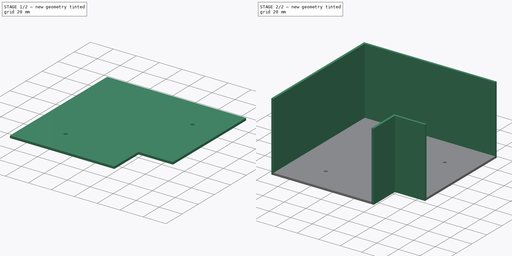
[diagram: build sequence overview — one tinted view per stage of 2, left to right]
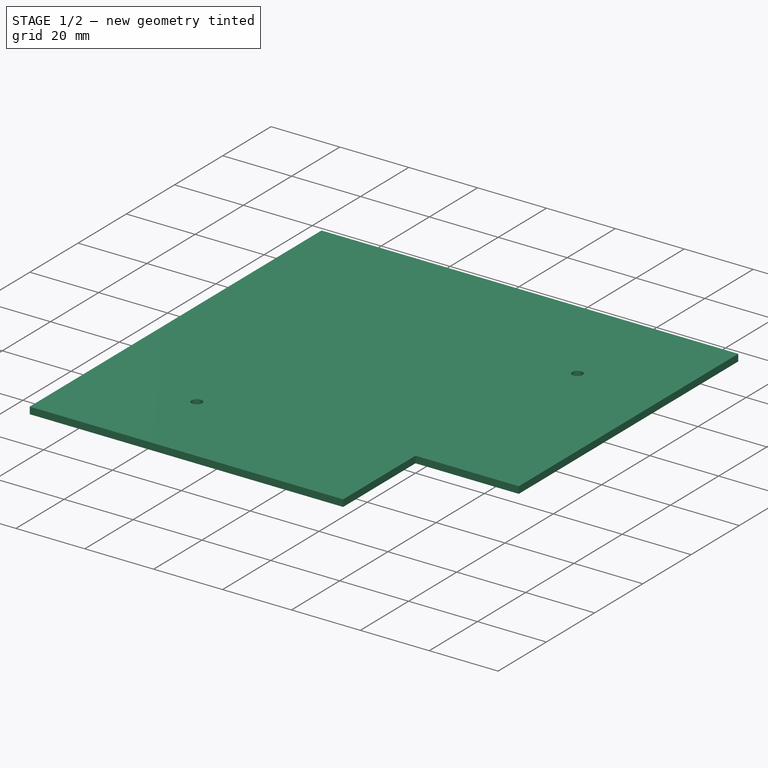
[diagram: stage 1 of 2 — iso view after this stage's code; geometry added in this stage tinted green]
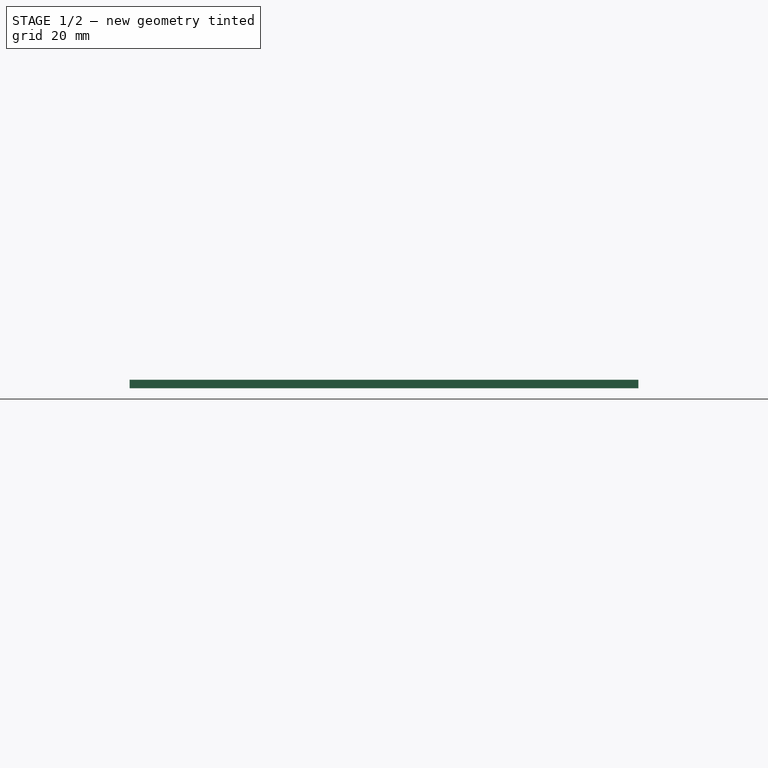
[diagram: stage 1 of 2 — front view after this stage's code; geometry added in this stage tinted green]
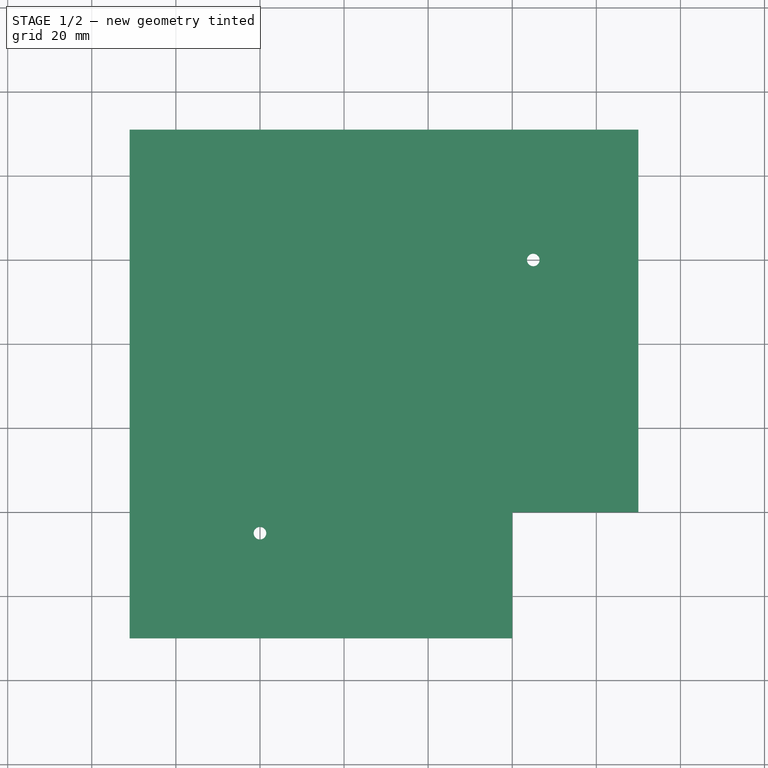
[diagram: stage 1 of 2 — top view after this stage's code; geometry added in this stage tinted green]
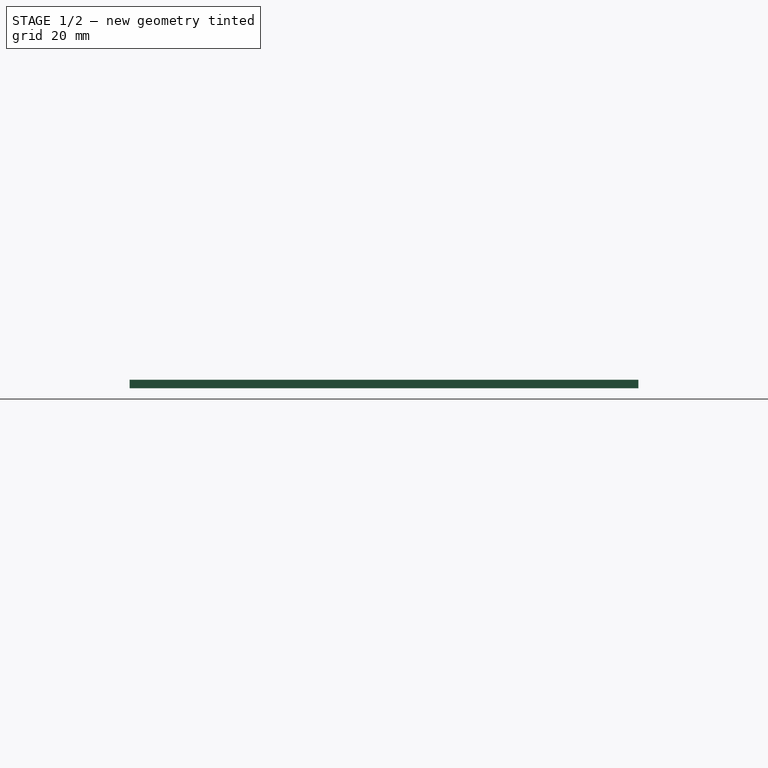
[diagram: stage 1 of 2 — right view after this stage's code; geometry added in this stage tinted green]
FCSTD DOCUMENT  (FreeCAD 0.21R33771 (Git))
Label: Model
License: All rights reserved
LicenseURL: https://en.wikipedia.org/wiki/All_rights_reserved
objects: Sketcher::SketchObject×2, PartDesign::Pad×2, PartDesign::Body×1
note: 7 computed .brp shape members not serialized (recipe doc carries the construction recipe); baked Part::Feature solids carry a one-line shape summary decoded from their .brp

FEATURE [Sketcher::SketchObject] Sketch
  FullyConstrained = true
  MapMode = 5
  sketch-geometry (8):
    g0: LineSegment StartX=0 StartY=0 StartZ=0 EndX=30 EndY=0 EndZ=0
    g1: LineSegment StartX=30 StartY=0 StartZ=0 EndX=30 EndY=91 EndZ=0
    g2: LineSegment StartX=30 StartY=91 StartZ=0 EndX=-91 EndY=91 EndZ=0
    g3: LineSegment StartX=-91 StartY=91 StartZ=0 EndX=-91 EndY=-30 EndZ=0
    g4: LineSegment StartX=-91 StartY=-30 StartZ=0 EndX=0 EndY=-30 EndZ=0
    g5: LineSegment StartX=0 StartY=-30 StartZ=0 EndX=0 EndY=0 EndZ=0
    g6: Circle CenterX=-60 CenterY=-5 CenterZ=0 NormalX=0 NormalY=0 NormalZ=1 AngleXU=0 Radius=1.5
    g7: Circle CenterX=5 CenterY=60 CenterZ=0 NormalX=0 NormalY=0 NormalZ=1 AngleXU=0 Radius=1.5
  constraints (23):
    c: Coincident(g-1,g0)
    c: PointOnObject(g0,g-1)
    c: Coincident(g0,g1)
    c: Vertical(g1)
    c: Coincident(g1,g2)
    c: Horizontal(g2)
    c: Coincident(g2,g3)
    c: Vertical(g3)
    c: Coincident(g3,g4)
    c: PointOnObject(g4,g-2)
    c: Horizontal(g4)
    c: Coincident(g4,g5)
    c: Coincident(g5,g0)
    c: DistanceY(g1,g1) = 91
    c: DistanceX(g0,g0) = 30
    c: Equal(g4,g1)
    c: Equal(g5,g0)
    c: Equal(g6,g7)
    c: Diameter(g7) = 3
    c: DistanceX(g6,g0) = 60
    c: DistanceY(g0,g7) = 60
    c: DistanceY(g4,g6) = 25
    c: DistanceX(g7,g0) = 25
FEATURE [PartDesign::Pad] Pad
  Direction = (0,0,1)
  Length = 2
  Length2 = 10
  Profile = -> Sketch
  ReferenceAxis = -> Sketch [N_Axis]
  Refine = true
  Type = 0
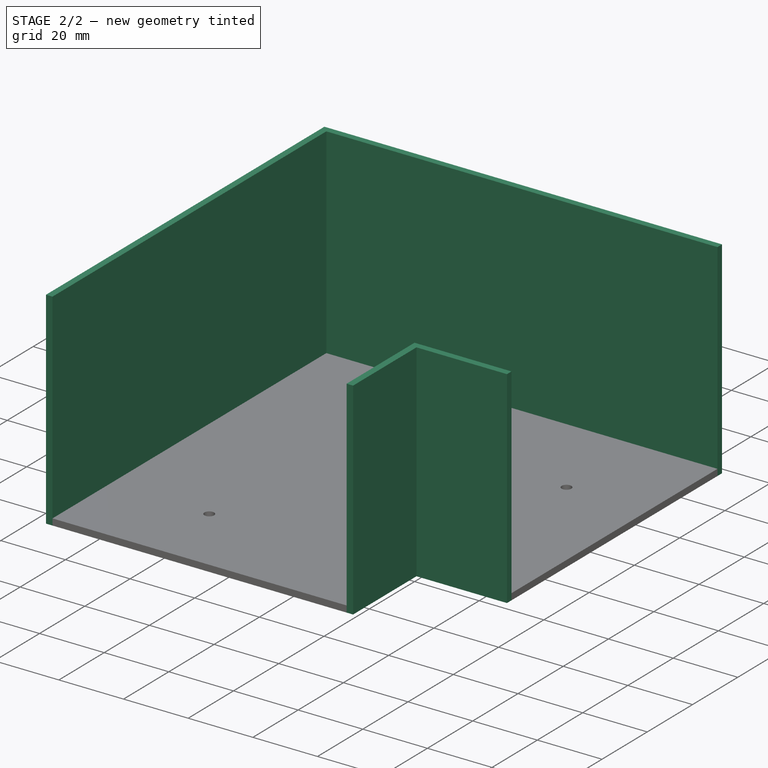
[diagram: stage 2 of 2 — iso view after this stage's code; geometry added in this stage tinted green]
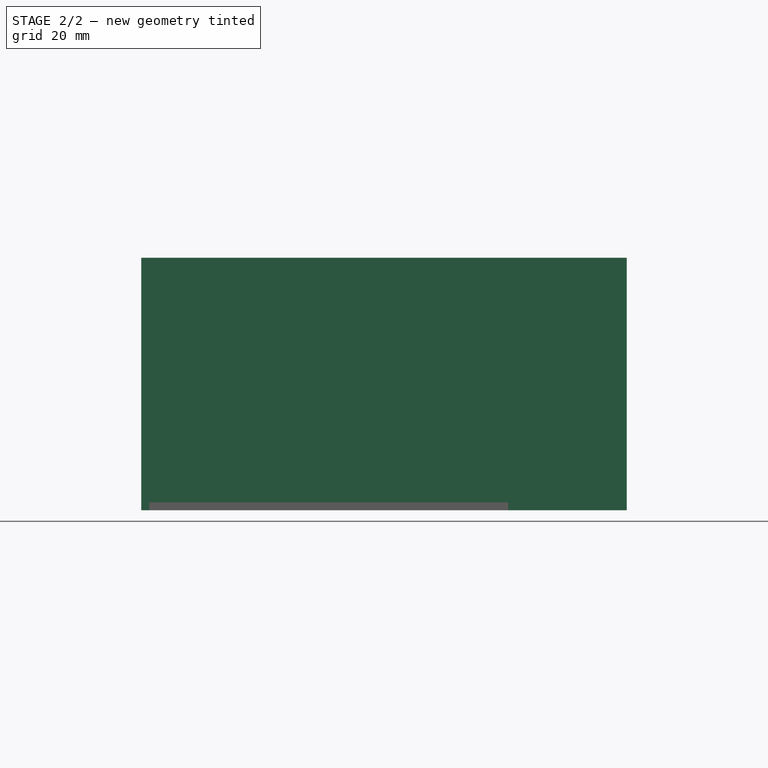
[diagram: stage 2 of 2 — front view after this stage's code; geometry added in this stage tinted green]
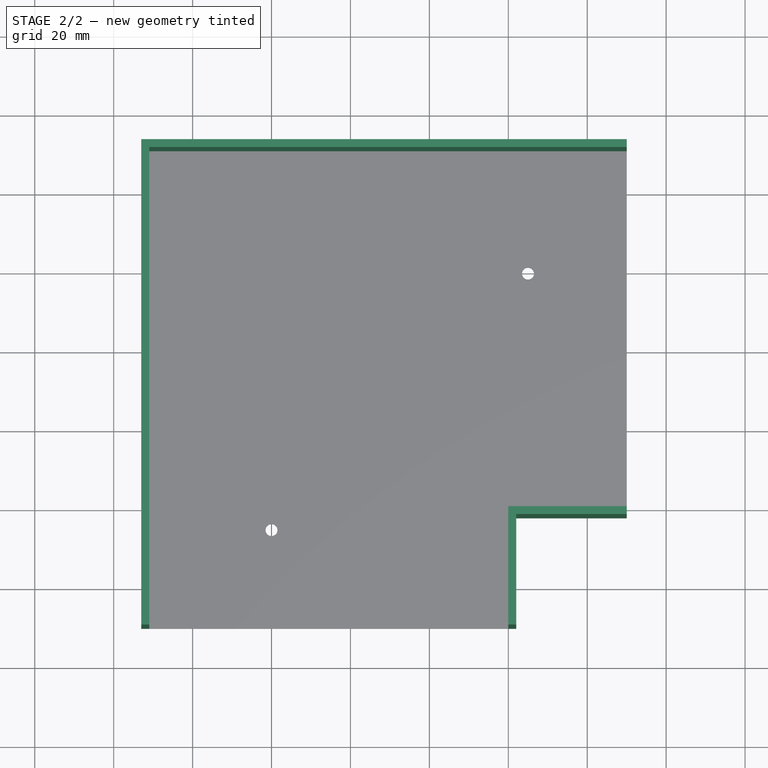
[diagram: stage 2 of 2 — top view after this stage's code; geometry added in this stage tinted green]
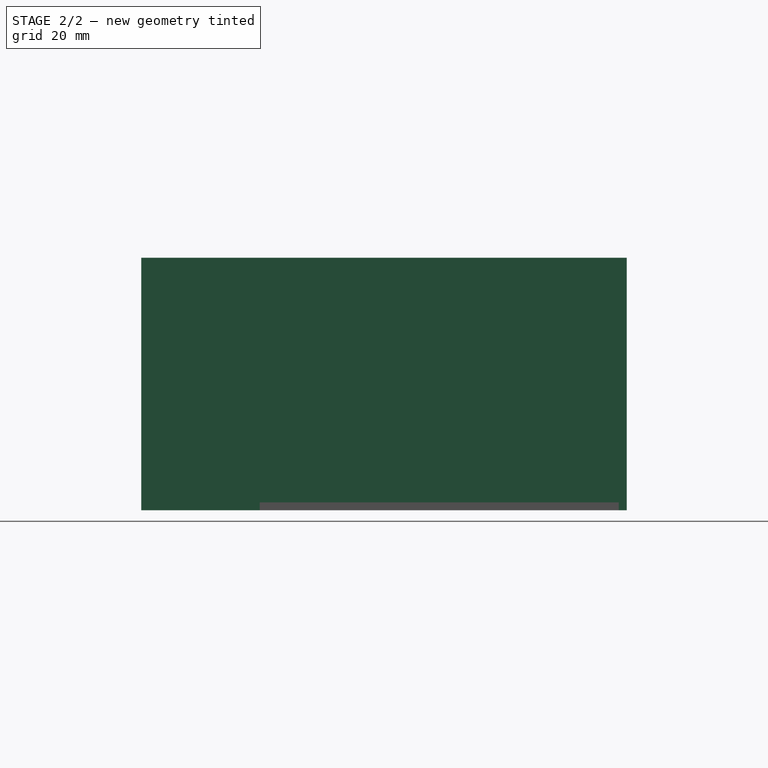
[diagram: stage 2 of 2 — right view after this stage's code; geometry added in this stage tinted green]
FEATURE [Sketcher::SketchObject] Sketch001
  ExternalGeometry = -> [Pad]
  FullyConstrained = true
  MapMode = 5
  Placement = pos=(0,0,0) rot=(1,0,0;3.14159rad)
  Support = -> [Pad]
  sketch-geometry (13):
    g0: LineSegment StartX=-91 StartY=30 StartZ=0 EndX=-93 EndY=30 EndZ=0
    g1: LineSegment StartX=-93 StartY=30 StartZ=0 EndX=-93 EndY=-93 EndZ=0
    g2: LineSegment StartX=-93 StartY=-93 StartZ=0 EndX=-91 EndY=-93 EndZ=0
    g3: LineSegment StartX=-91 StartY=-91 StartZ=0 EndX=-91 EndY=30 EndZ=0
    g4: LineSegment StartX=-91 StartY=-93 StartZ=0 EndX=30 EndY=-93 EndZ=0
    g5: LineSegment StartX=-91 StartY=-91 StartZ=0 EndX=30 EndY=-91 EndZ=0
    g6: LineSegment StartX=30 StartY=-91 StartZ=0 EndX=30 EndY=-93 EndZ=0
    g7: LineSegment StartX=0 StartY=30 StartZ=0 EndX=0 EndY=0 EndZ=0
    g8: LineSegment StartX=0 StartY=0 StartZ=0 EndX=30 EndY=0 EndZ=0
    g9: LineSegment StartX=30 StartY=0 StartZ=0 EndX=30 EndY=2 EndZ=0
    g10: LineSegment StartX=30 StartY=2 StartZ=0 EndX=2 EndY=2 EndZ=0
    g11: LineSegment StartX=2 StartY=2 StartZ=0 EndX=2 EndY=30 EndZ=0
    g12: LineSegment StartX=2 StartY=30 StartZ=0 EndX=0 EndY=30 EndZ=0
  constraints (34):
    c: Coincident(g0,g1)
    c: Coincident(g1,g2)
    c: Coincident(g3,g0)
    c: Horizontal(g0)
    c: Horizontal(g2)
    c: Vertical(g1)
    c: Vertical(g3)
    c: Coincident(g0,g-3)
    c: Horizontal(g4)
    c: Coincident(g4,g2)
    c: DistanceY(g4,g-4) = 2
    c: Vertical(g2,g3)
    c: Coincident(g5,g3)
    c: Horizontal(g5)
    c: Vertical(g4,g5)
    c: Coincident(g5,g-4)
    c: Coincident(g6,g5)
    c: Coincident(g6,g4)
    c: DistanceX(g0,g0) = 2
    c: Coincident(g-5,g7)
    c: Coincident(g7,g-6)
    c: Coincident(g7,g8)
    c: Coincident(g8,g-6)
    c: Coincident(g8,g9)
    c: Coincident(g9,g10)
    c: Horizontal(g10)
    c: Coincident(g10,g11)
    c: Vertical(g11)
    c: Coincident(g11,g12)
    c: Coincident(g12,g7)
    c: Horizontal(g12)
    c: Vertical(g9)
    c: DistanceX(g12,g12) = 2
    c: DistanceY(g9,g9) = 2
FEATURE [PartDesign::Pad] Pad001
  BaseFeature = -> Pad
  Direction = (0,0,-1)
  Length = 64
  Length2 = 10
  Profile = -> Sketch001
  ReferenceAxis = -> Sketch001 [N_Axis]
  Reversed = true
  Type = 0
FEATURE [PartDesign::Body] Body
  Group = -> [Sketch,Pad,Sketch001,Pad001]
  Origin = -> Origin
  Tip = -> Pad001
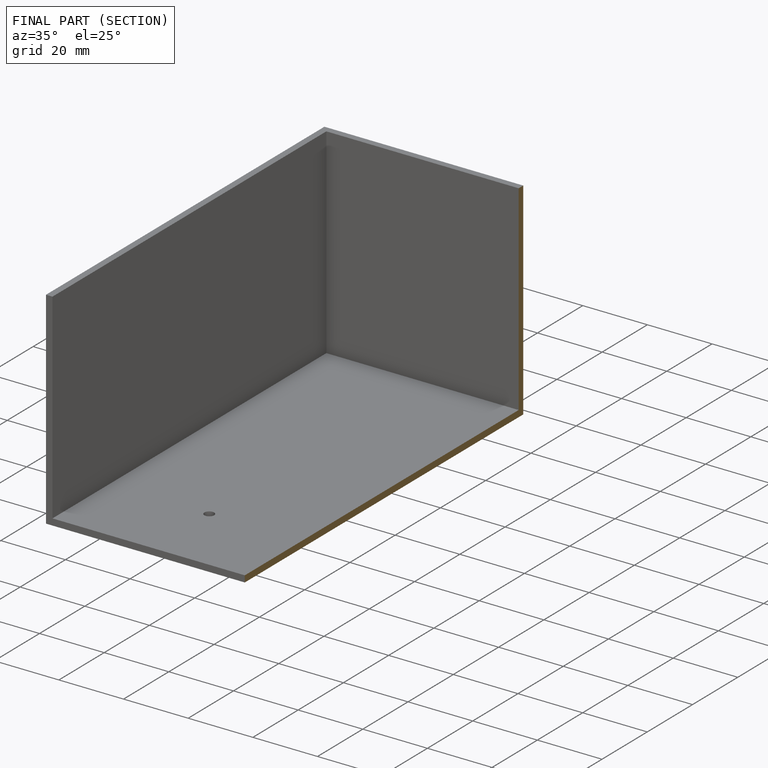
[diagram: finished part — half-section view (interior)]
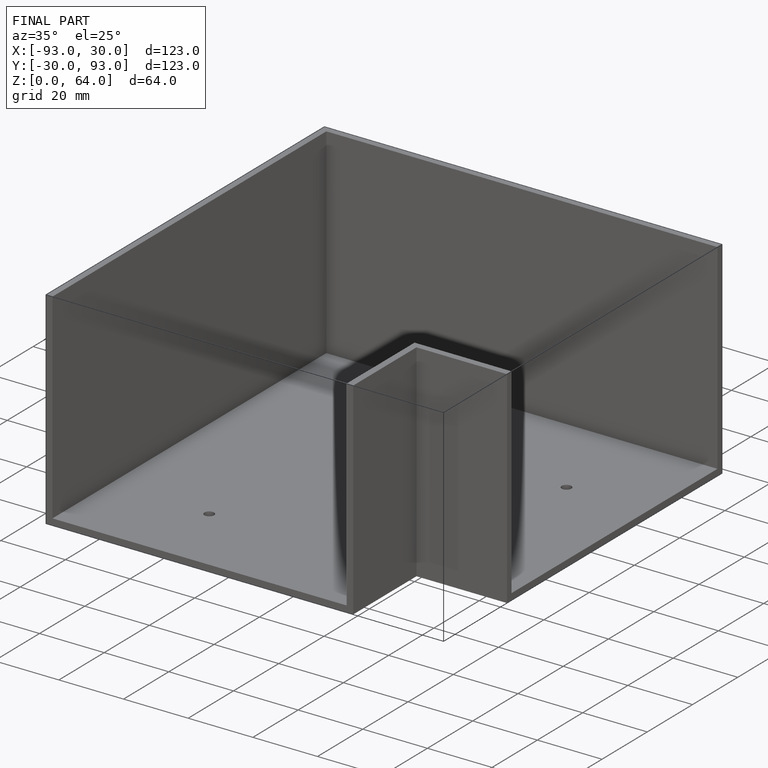
[diagram: finished part — iso view with bounding-box wireframe]
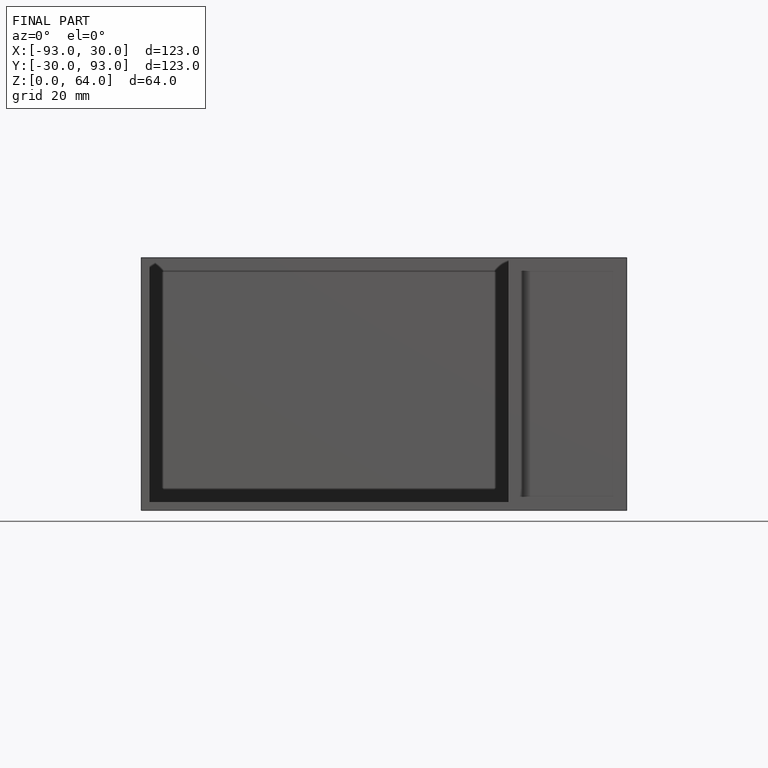
[diagram: finished part — front view with bounding-box wireframe]
